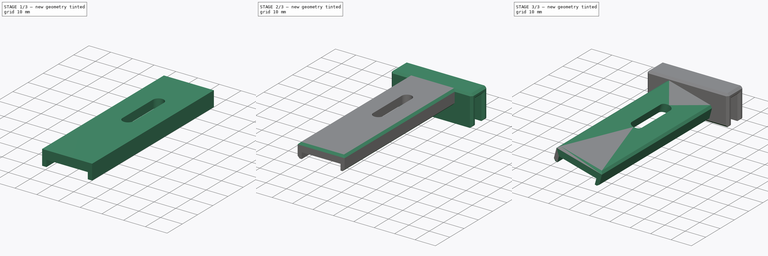
[diagram: build sequence overview — one tinted view per stage of 3, left to right]
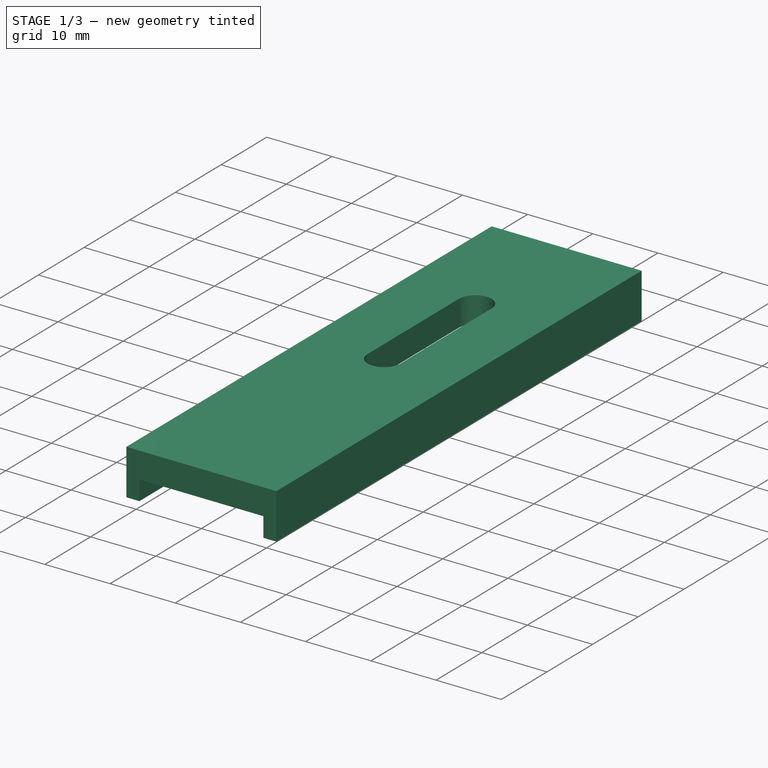
[diagram: stage 1 of 3 — iso view after this stage's code; geometry added in this stage tinted green]
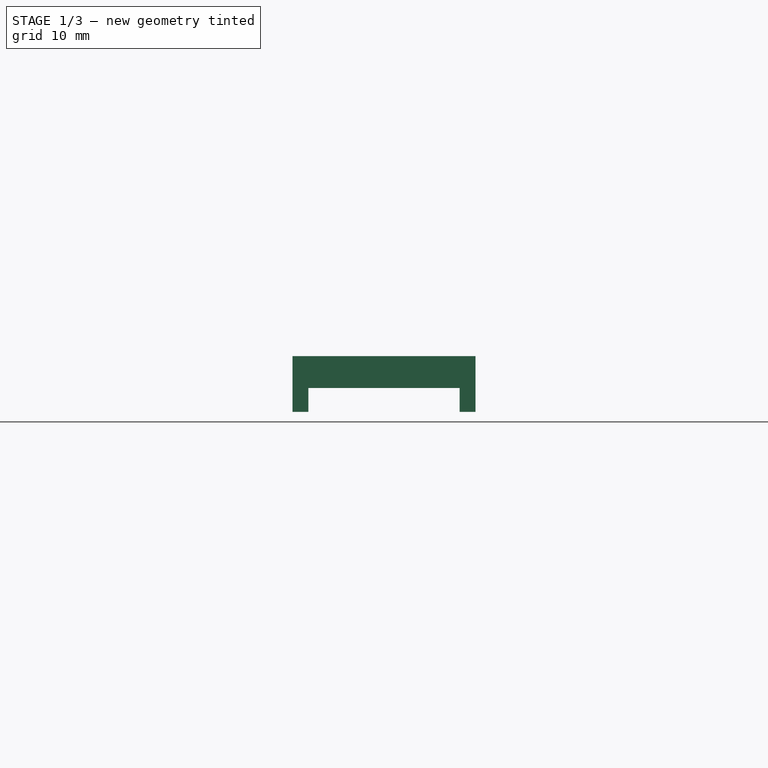
[diagram: stage 1 of 3 — front view after this stage's code; geometry added in this stage tinted green]
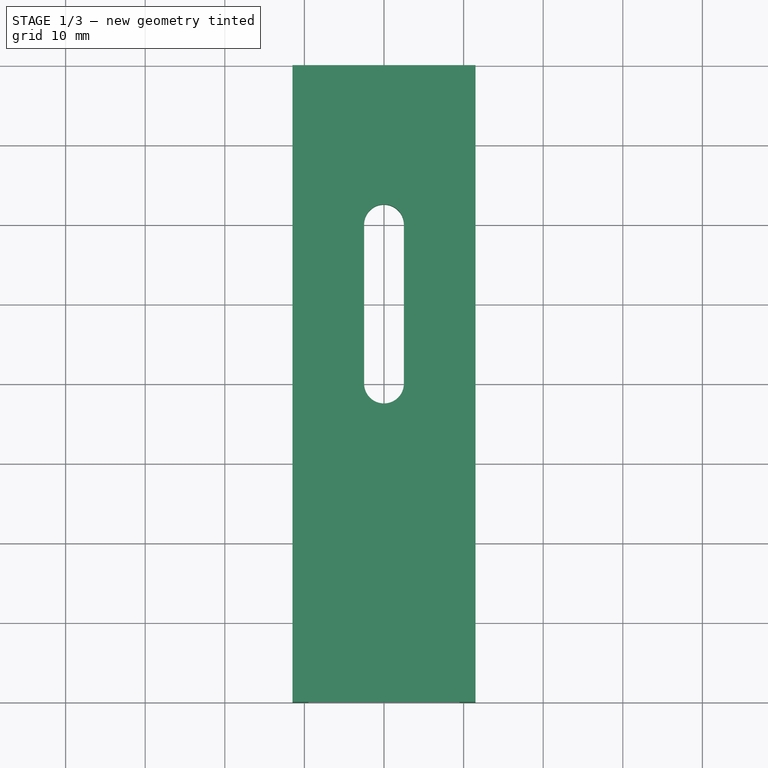
[diagram: stage 1 of 3 — top view after this stage's code; geometry added in this stage tinted green]
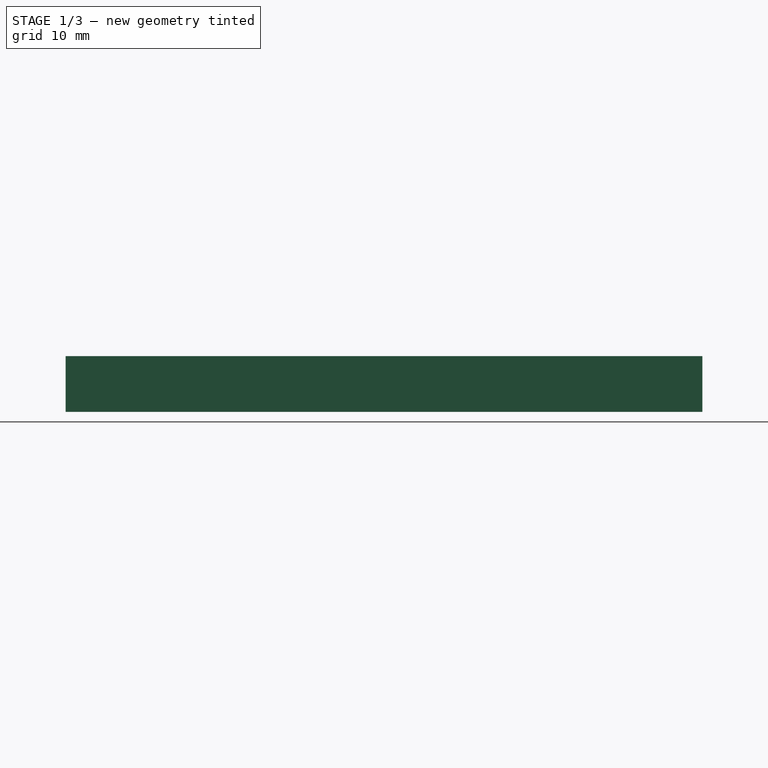
[diagram: stage 1 of 3 — right view after this stage's code; geometry added in this stage tinted green]
FCSTD DOCUMENT  (FreeCAD 0.21R)
Label: light_holder_r
License: All rights reserved
LicenseURL: http://en.wikipedia.org/wiki/All_rights_reserved
objects: Sketcher::SketchObject×3, PartDesign::Chamfer×3, PartDesign::Pad×2, PartDesign::Body×2, App::MeasureDistance×2, PartDesign::Pocket×1, Part::FeaturePython×1
note: 18 computed .brp shape members not serialized (recipe doc carries the construction recipe); baked Part::Feature solids carry a one-line shape summary decoded from their .brp

FEATURE [PartDesign::Body] Body
  Group = -> [Sketch005,Pad,Chamfer001,Chamfer002]
  Origin = -> Origin
  Tip = -> Chamfer002
FEATURE [Sketcher::SketchObject] Sketch
  FullyConstrained = true
  MapMode = 5
  Placement = pos=(0,0,0) rot=(1,0,0;1.5708rad)
  Support = -> [XZ_Plane001]
  sketch-geometry (8):
    g0: LineSegment StartX=-9.5 StartY=1 StartZ=0 EndX=9.5 EndY=1 EndZ=0
    g1: LineSegment StartX=-9.5 StartY=1 StartZ=0 EndX=-9.5 EndY=-2 EndZ=0
    g2: LineSegment StartX=-9.5 StartY=-2 StartZ=0 EndX=-11.5 EndY=-2 EndZ=0
    g3: LineSegment StartX=-11.5 StartY=-2 StartZ=0 EndX=-11.5 EndY=5 EndZ=0
    g4: LineSegment StartX=-11.5 StartY=5 StartZ=0 EndX=11.5 EndY=5 EndZ=0
    g5: LineSegment StartX=11.5 StartY=5 StartZ=0 EndX=11.5 EndY=-2 EndZ=0
    g6: LineSegment StartX=11.5 StartY=-2 StartZ=0 EndX=9.5 EndY=-2 EndZ=0
    g7: LineSegment StartX=9.5 StartY=-2 StartZ=0 EndX=9.5 EndY=1 EndZ=0
  constraints (23):
    c: Coincident(g1,g0)
    c: Vertical(g1)
    c: Coincident(g2,g1)
    c: Coincident(g3,g2)
    c: Vertical(g3)
    c: Coincident(g4,g3)
    c: Horizontal(g4)
    c: Coincident(g5,g4)
    c: Coincident(g6,g5)
    c: Coincident(g7,g6)
    c: Coincident(g7,g0)
    c: Vertical(g7)
    c: DistanceX(g0,g0) = 19
    c: Perpendicular(g2,g1)
    c: Perpendicular(g5,g4)
    c: Perpendicular(g6,g5)
    c: DistanceY(g0,g3) = 4
    c: DistanceX(g2,g2) = 2
    c: DistanceX(g6,g6) = 2
    c: DistanceY(g6,g1) = 0
    c: DistanceY(g1,g1) = 3
    c: DistanceY(g-1,g0) = 1
    c: Symmetric(g0,g0,g-2)
FEATURE [PartDesign::Pad] Pad001
  Direction = (0,-1,-2e-16)
  Length = 80
  Length2 = 10
  Placement = pos=(0,0,0) rot=(1,0,0;1.5708rad)
  Profile = -> Sketch
  ReferenceAxis = -> Sketch [N_Axis]
  Type = 0
FEATURE [Sketcher::SketchObject] Sketch006
  FullyConstrained = true
  MapMode = 5
  Support = -> [XY_Plane001]
  sketch-geometry (4):
    g0: ArcOfCircle CenterX=0 CenterY=-20 CenterZ=0 NormalX=0 NormalY=0 NormalZ=1 AngleXU=0 Radius=2.5 StartAngle=-9e-16 EndAngle=3.14159
    g1: ArcOfCircle CenterX=-1e-16 CenterY=-40 CenterZ=0 NormalX=0 NormalY=0 NormalZ=1 AngleXU=0 Radius=2.5 StartAngle=3.14159 EndAngle=6.28319
    g2: LineSegment StartX=-2.5 StartY=-20 StartZ=0 EndX=-2.5 EndY=-40 EndZ=0
    g3: LineSegment StartX=2.5 StartY=-40 StartZ=0 EndX=2.5 EndY=-20 EndZ=0
  constraints (10):
    c: Tangent(g0,g2) = -1.5708
    c: Tangent(g2,g1) = -1.5708
    c: Tangent(g1,g3) = -1.5708
    c: Tangent(g3,g0) = -1.5708
    c: Equal(g0,g1)
    c: PointOnObject(g0,g-2)
    c: Vertical(g2)
    c: Radius(g1) = 2.5
    c: DistanceY(g0,g-1) = 20
    c: DistanceY(g1,g0) = 20
FEATURE [PartDesign::Pocket] Pocket
  BaseFeature = -> Pad001
  Direction = (0,0,-1)
  Length = 1
  Length2 = 5
  Placement = pos=(0,0,0) rot=(1,0,0;1.5708rad)
  Profile = -> Sketch006
  ReferenceAxis = -> Sketch006 [N_Axis]
  Reversed = true
  Type = 1
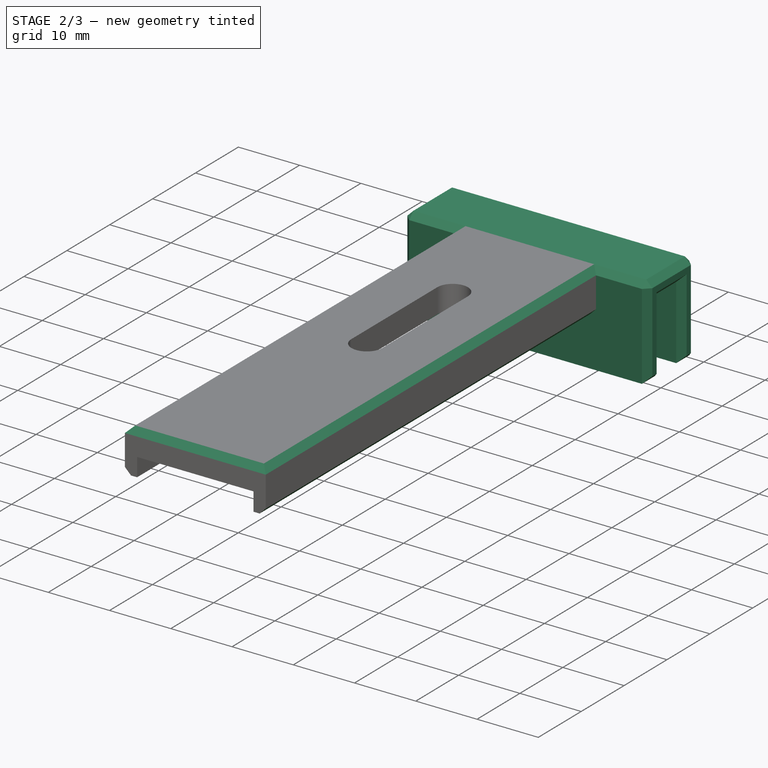
[diagram: stage 2 of 3 — iso view after this stage's code; geometry added in this stage tinted green]
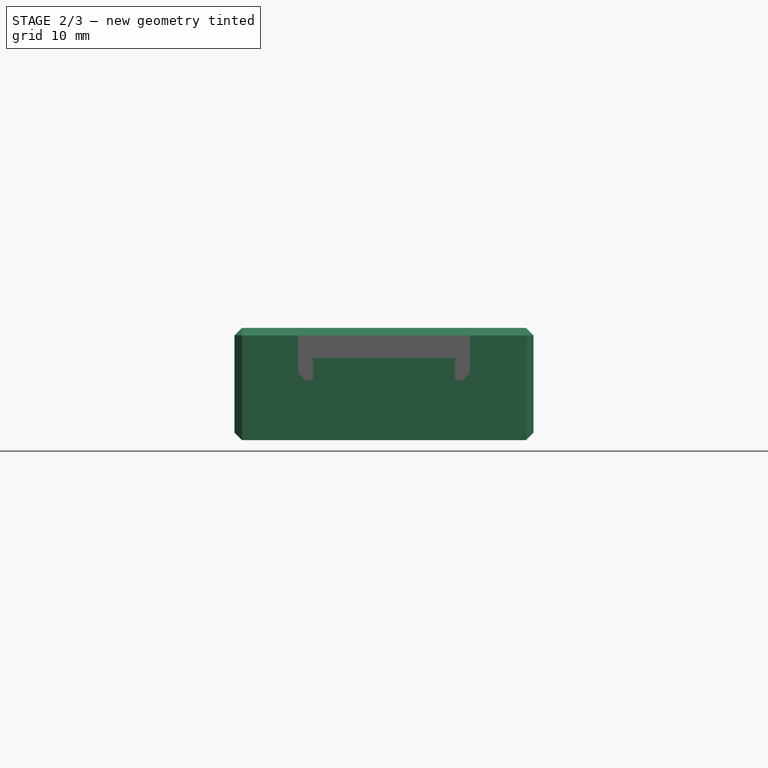
[diagram: stage 2 of 3 — front view after this stage's code; geometry added in this stage tinted green]
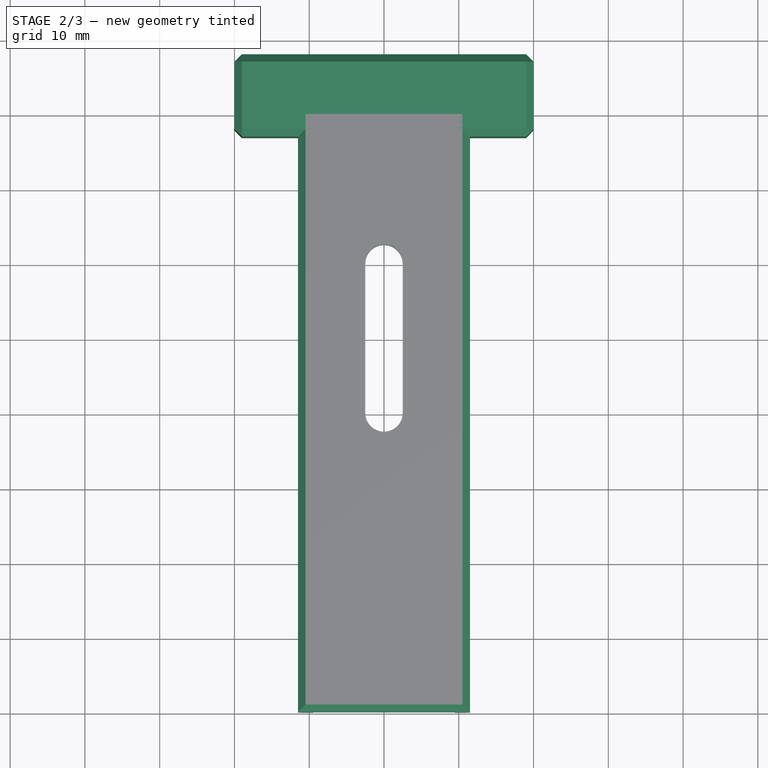
[diagram: stage 2 of 3 — top view after this stage's code; geometry added in this stage tinted green]
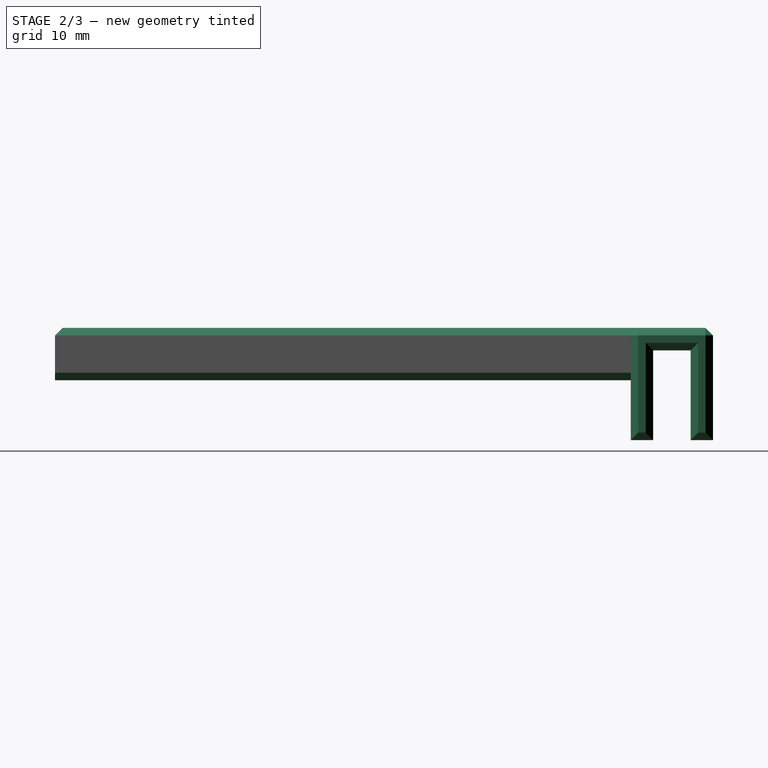
[diagram: stage 2 of 3 — right view after this stage's code; geometry added in this stage tinted green]
FEATURE [Sketcher::SketchObject] Sketch005
  FullyConstrained = false
  MapMode = 5
  Placement = pos=(0,0,0) rot=(0.57735,0.57735,0.57735;2.0944rad)
  sketch-geometry (9):
    g0: LineSegment StartX=5 StartY=-10 StartZ=0 EndX=8 EndY=-10 EndZ=0
    g1: LineSegment StartX=8 StartY=-10 StartZ=0 EndX=8 EndY=5 EndZ=0
    g2: LineSegment StartX=5 StartY=2 StartZ=0 EndX=5 EndY=-10 EndZ=0
    g3: LineSegment StartX=0 StartY=2 StartZ=0 EndX=5 EndY=2 EndZ=0
    g4: LineSegment StartX=-3 StartY=5 StartZ=0 EndX=8 EndY=5 EndZ=0
    g5: LineSegment StartX=-3 StartY=5 StartZ=0 EndX=-3 EndY=-2.22198 EndZ=0
    g6: LineSegment StartX=-3 StartY=-2.22198 StartZ=0 EndX=-3 EndY=-10 EndZ=0
    g7: LineSegment StartX=-3 StartY=-10 StartZ=0 EndX=0 EndY=-10 EndZ=0
    g8: LineSegment StartX=0 StartY=-10 StartZ=0 EndX=0 EndY=2 EndZ=0
  constraints (26):
    c: Coincident(g0,g1)
    c: Coincident(g2,g0)
    c: Horizontal(g0)
    c: Vertical(g1)
    c: Vertical(g2)
    c: Horizontal(g3)
    c: Coincident(g2,g3)
    c: DistanceX(g3,g2) = 5
    c: DistanceY(g2,g2) = 12
    c: DistanceY(g1,g1) = 15
    c: Coincident(g4,g1)
    c: Horizontal(g4)
    c: DistanceY(g-1,g4) = 5
    c: DistanceX(g-1,g3) = 0
    c: Coincident(g5,g4)
    c: DistanceX(g4) = -3
    c: Perpendicular(g4,g5)
    c: Coincident(g6,g5)
    c: Coincident(g7,g6)
    c: Coincident(g8,g7)
    c: Coincident(g8,g3)
    c: Perpendicular(g8,g3)
    c: Perpendicular(g8,g7)
    c: Perpendicular(g7,g6)
    c: DistanceY(g6,g-1) = 10
    c: DistanceX(g0,g0) = 3
FEATURE [PartDesign::Pad] Pad
  Direction = (1,0,0)
  Length = 40
  Length2 = 10
  Midplane = true
  Placement = pos=(0,0,0) rot=(0.57735,0.57735,0.57735;2.0944rad)
  Profile = -> Sketch005
  ReferenceAxis = -> Sketch005 [N_Axis]
  Type = 0
FEATURE [PartDesign::Chamfer] Chamfer001
  Angle = 45
  Base = -> Pad [Face11,Face10,Face4,Face3]
  BaseFeature = -> Pad
  ChamferType = 0
  FlipDirection = false
  Placement = pos=(0,0,0) rot=(0.57735,0.57735,0.57735;2.0944rad)
  Size = 1
  Size2 = 1
  SupportTransform = false
  UseAllEdges = false
FEATURE [App::MeasureDistance] Distance  label="Distance: 36,034419 mm"
  Distance = 36.0344
  P1 = (19,7e-16,2)
  P2 = (10.5,-35.0176,2.02167)
FEATURE [PartDesign::Chamfer] Chamfer
  Angle = 45
  Base = -> Pocket [Edge35,Edge36,Edge21,Edge34,Edge33]
  BaseFeature = -> Pocket
  ChamferType = 0
  FlipDirection = false
  Placement = pos=(0,0,0) rot=(1,0,0;1.5708rad)
  Size = 1
  Size2 = 1
  SupportTransform = false
  UseAllEdges = false
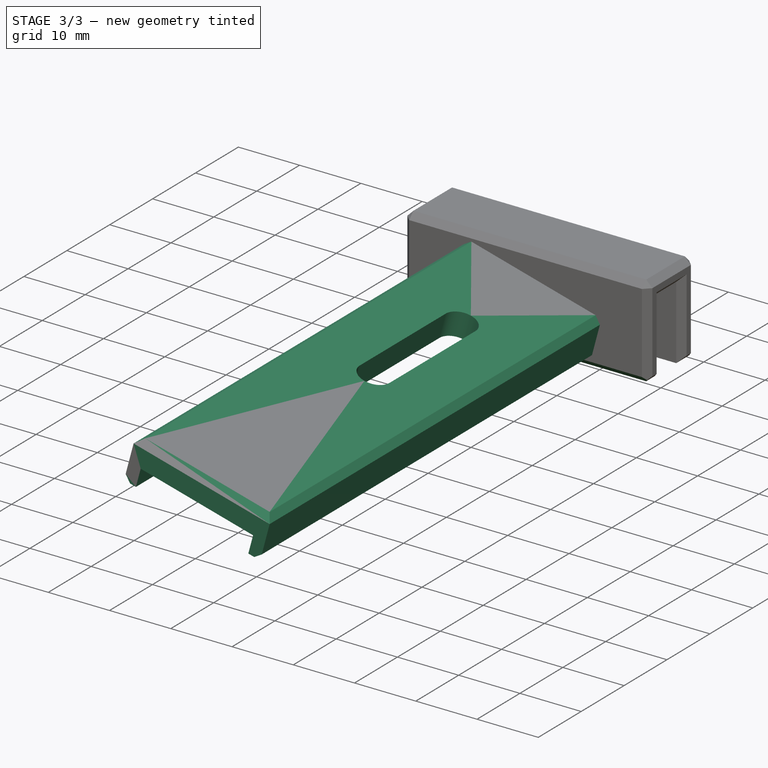
[diagram: stage 3 of 3 — iso view after this stage's code; geometry added in this stage tinted green]
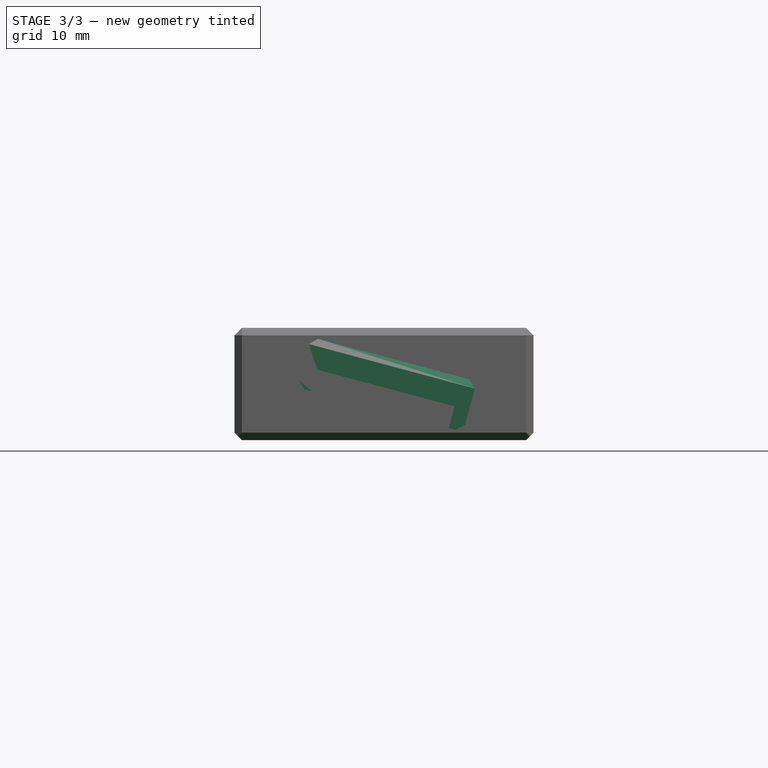
[diagram: stage 3 of 3 — front view after this stage's code; geometry added in this stage tinted green]
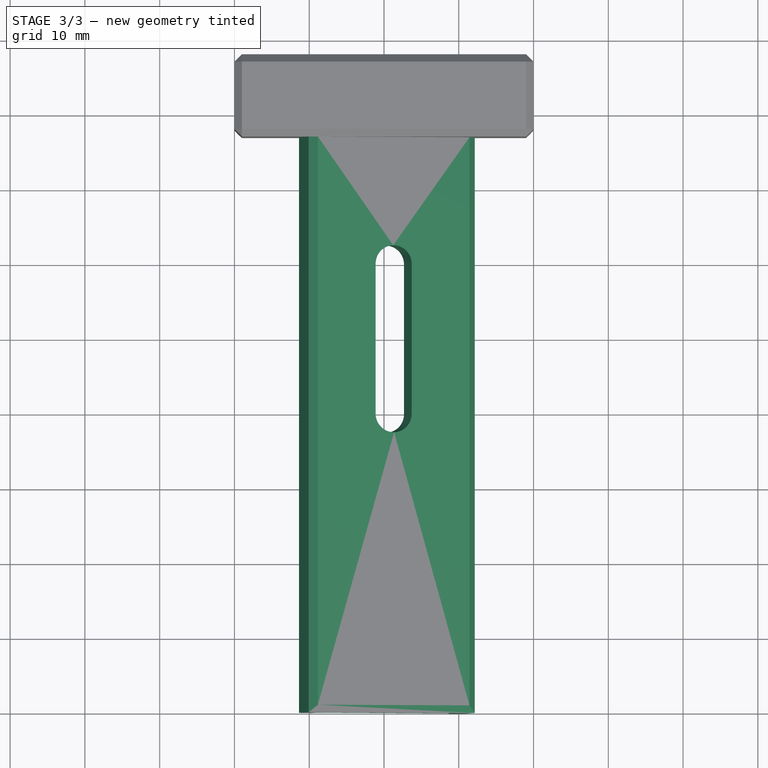
[diagram: stage 3 of 3 — top view after this stage's code; geometry added in this stage tinted green]
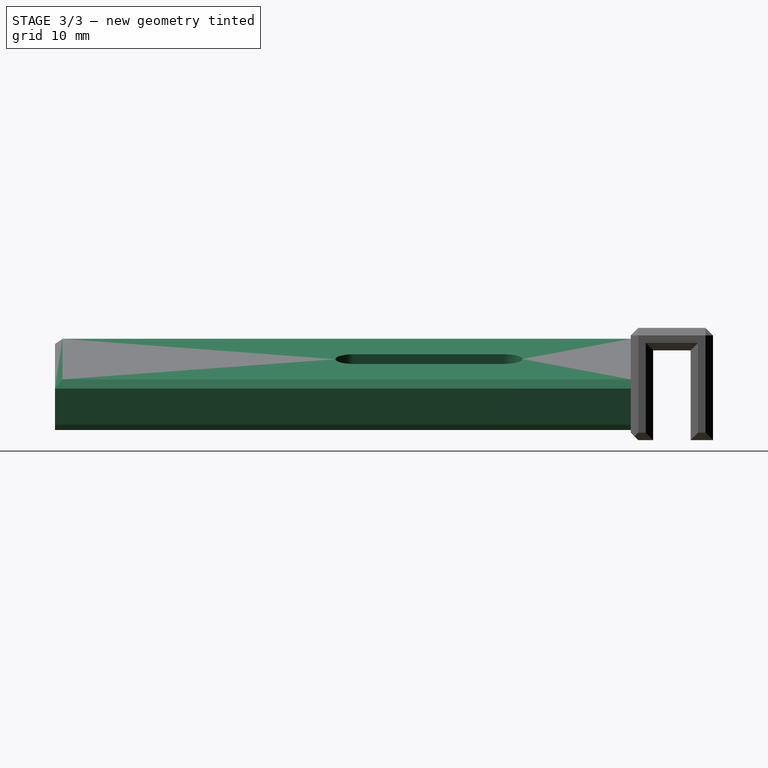
[diagram: stage 3 of 3 — right view after this stage's code; geometry added in this stage tinted green]
FEATURE [PartDesign::Chamfer] Chamfer002
  Angle = 45
  Base = -> Chamfer001 [Edge69]
  BaseFeature = -> Chamfer001
  ChamferType = 0
  FlipDirection = false
  Placement = pos=(0,0,0) rot=(0.57735,0.57735,0.57735;2.0944rad)
  Size = 1
  Size2 = 1
  SupportTransform = false
  UseAllEdges = false
FEATURE [PartDesign::Body] Body001
  Group = -> [Sketch,Pad001,Sketch006,Pocket,Chamfer]
  Origin = -> Origin001
  Placement = pos=(0,0,-4) rot=(0,1,0;0.261799rad)
  Tip = -> Chamfer
FEATURE [Part::FeaturePython] Connect  # WARN: FeaturePython — macro-defined, semantics opaque (R4)
  Objects = -> [Body,Body001]
  Tolerance = 0
FEATURE [App::MeasureDistance] Distance001  label="Distance: 5,004402 mm"
  Distance = 5.0044
  P1 = (-19,5,-10)
  P2 = (-19.0044,-0.00439811,-9.9956)
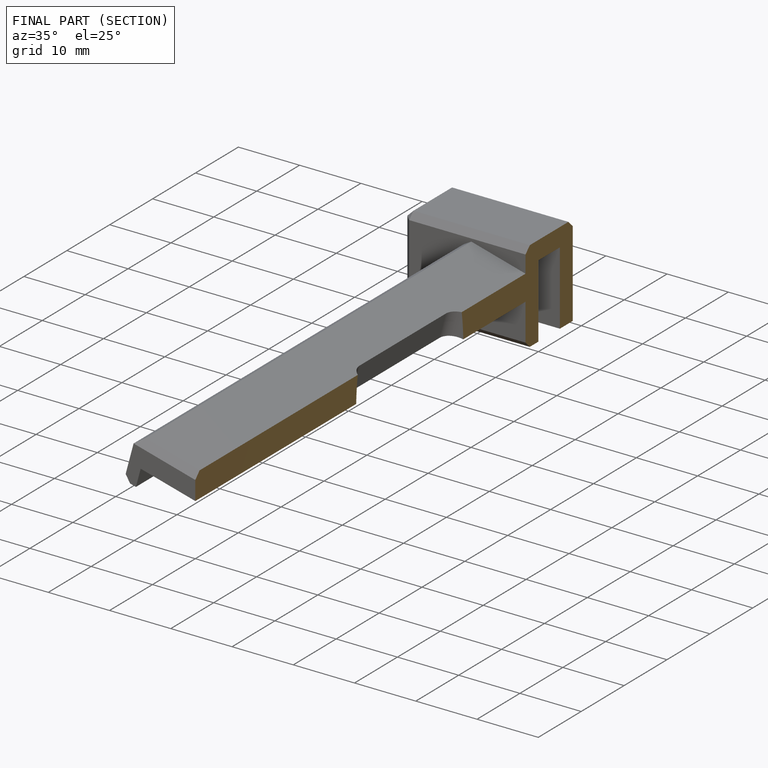
[diagram: finished part — half-section view (interior)]
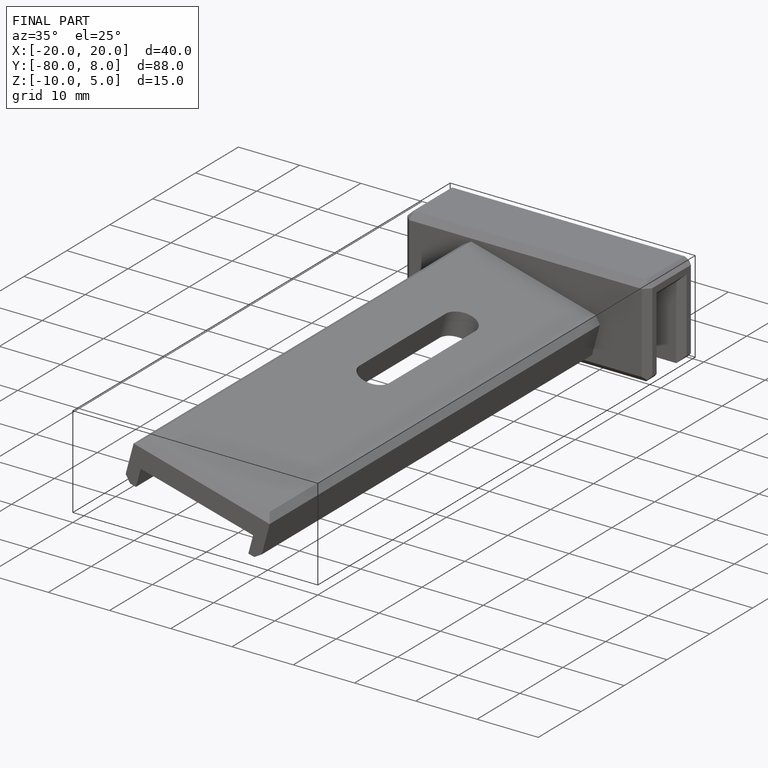
[diagram: finished part — iso view with bounding-box wireframe]
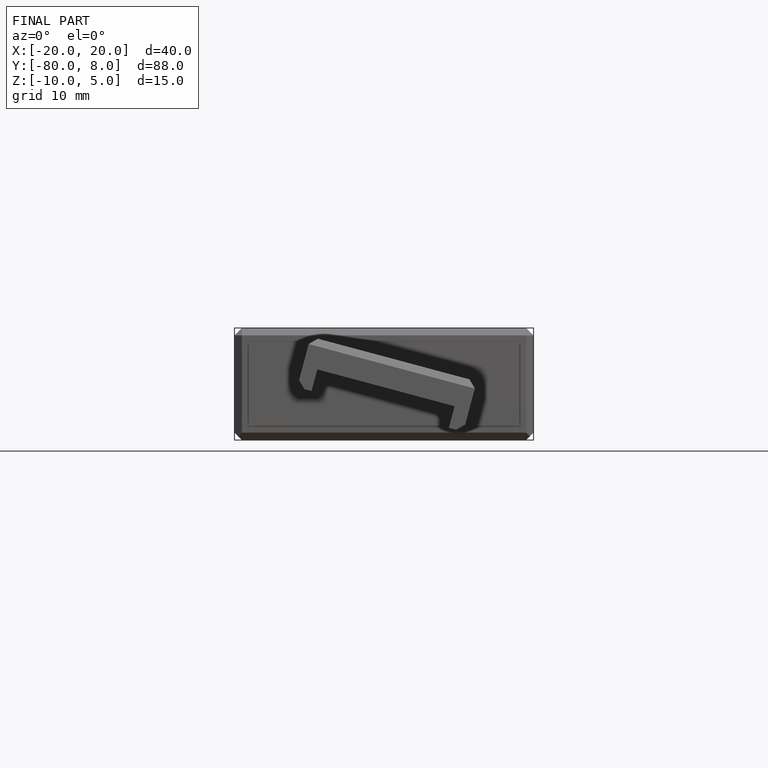
[diagram: finished part — front view with bounding-box wireframe]
